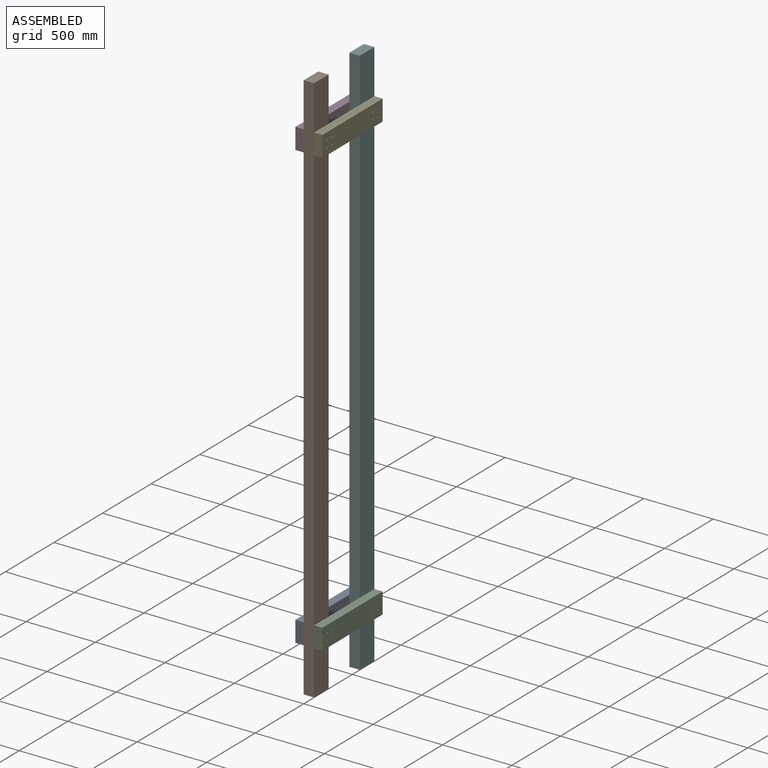
[diagram: assembled view]
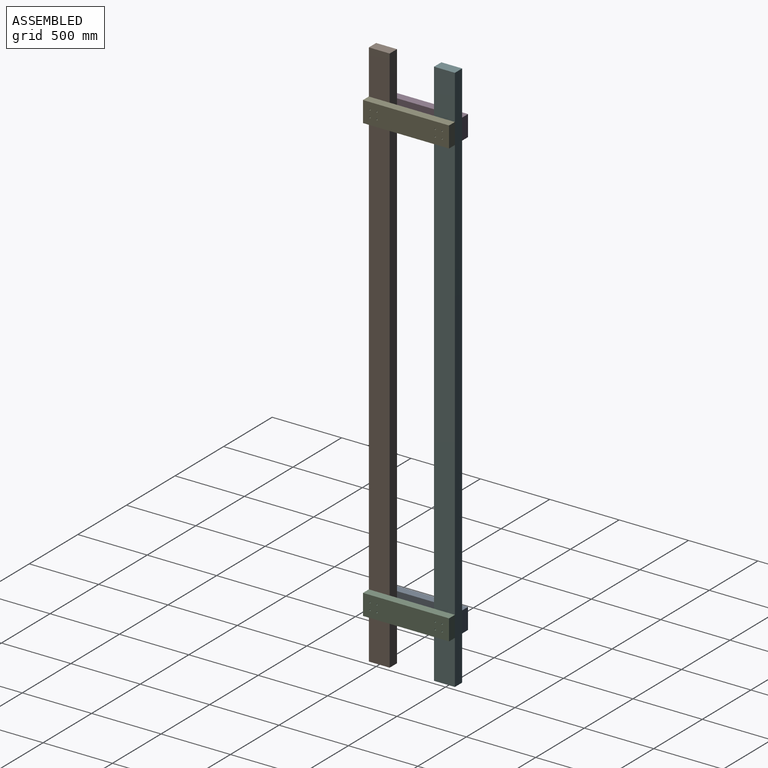
[diagram: assembled view, second angle]
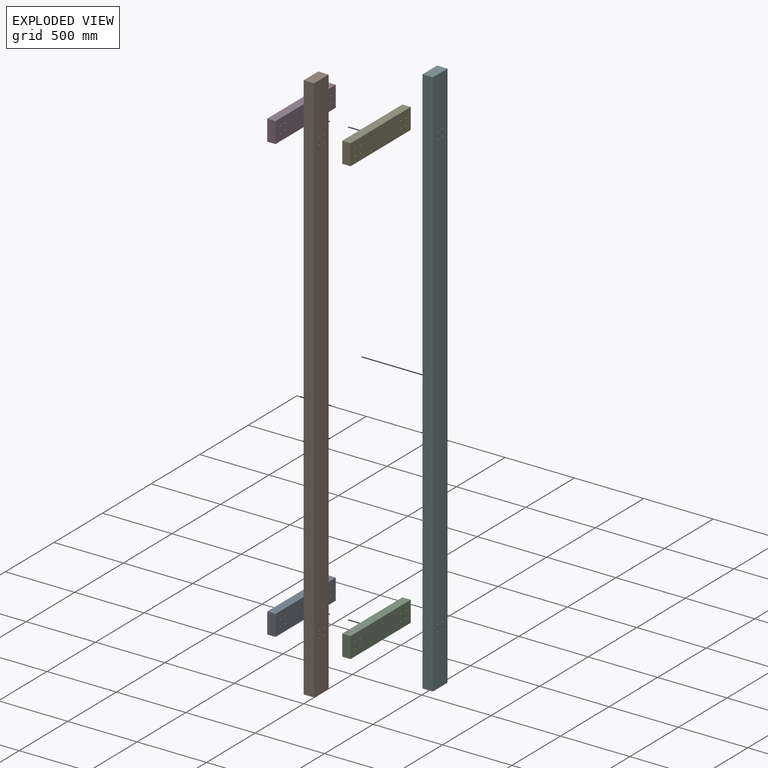
[diagram: exploded view]
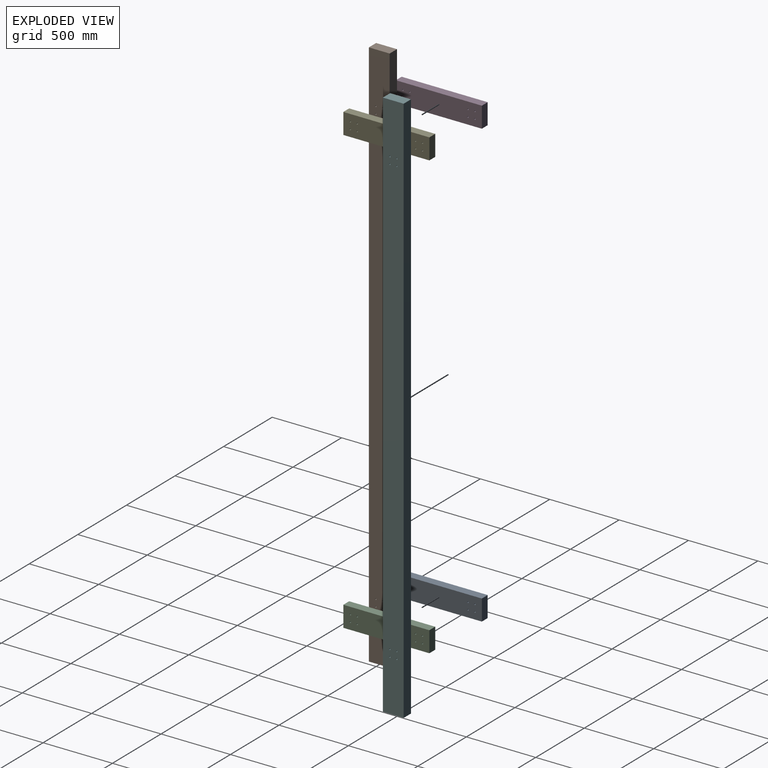
[diagram: exploded view, second angle]
ASSEMBLY  parts=6 mates=5
PART A: 14 faces, bbox 620x60x150 mm
  f0: plane 150x60mm, normal (-1,0,0), area 9000mm2, adj f1,f10,f12,f13
  f1: plane 620x60mm, normal (0,0,-1), area 37200mm2, adj f0,f2,f12,f13
  f2: plane 150x60mm, normal (1,0,0), area 9000mm2, adj f1,f10,f12,f13
  f3: cylinder r=5mm len=60mm, axis (0,1,0), area 1885mm2, adj f12,f13
  f4: cylinder r=5mm len=60mm, axis (0,1,0), area 1885mm2, adj f12,f13
  f5: cylinder r=5mm len=60mm, axis (0,1,0), area 1885mm2, adj f12,f13
  f6: cylinder r=5mm len=60mm, axis (0,1,0), area 1885mm2, adj f12,f13
  f7: cylinder r=5mm len=60mm, axis (0,1,0), area 1885mm2, adj f12,f13
  f8: cylinder r=5mm len=60mm, axis (0,1,0), area 1885mm2, adj f12,f13
  f9: cylinder r=5mm len=60mm, axis (0,1,0), area 1885mm2, adj f12,f13
  f10: plane 620x60mm, normal (0,0,1), area 37200mm2, adj f0,f2,f12,f13
  f11: cylinder r=5mm len=60mm, axis (0,1,0), area 1885mm2, adj f12,f13
  f12: plane 620x150mm, normal (0,-1,0), area 92371.7mm2, adj f0,f1,f2,f3,f4,f5,f6,f7
  f13: plane 620x150mm, normal (0,1,0), area 92371.7mm2, adj f0,f1,f2,f3,f4,f5,f6,f7
PART B: 14 faces, bbox 75x150x4000 mm
  f0: plane 4000x150mm, normal (-1,0,0), area 599371.7mm2, adj f1,f3,f4,f5,f6,f7,f8,f9
  f1: plane 4000x75mm, normal (0,-1,0), area 300000mm2, adj f0,f2,f4,f5
  f2: plane 4000x150mm, normal (1,0,0), area 599371.7mm2, adj f1,f3,f4,f5,f6,f7,f8,f9
  f3: plane 4000x75mm, normal (0,1,0), area 300000mm2, adj f0,f2,f4,f5
  f4: plane 150x75mm, normal (0,0,1), area 11250mm2, adj f0,f1,f2,f3
  f5: plane 150x75mm, normal (0,0,-1), area 11250mm2, adj f0,f1,f2,f3
  f6: cylinder r=5mm len=75mm, axis (1,0,0), area 2356.2mm2, adj f0,f2
  f7: cylinder r=5mm len=75mm, axis (1,0,0), area 2356.2mm2, adj f0,f2
  f8: cylinder r=5mm len=75mm, axis (1,0,0), area 2356.2mm2, adj f0,f2
  f9: cylinder r=5mm len=75mm, axis (1,0,0), area 2356.2mm2, adj f0,f2
  f10: cylinder r=5mm len=75mm, axis (1,0,0), area 2356.2mm2, adj f0,f2
  f11: cylinder r=5mm len=75mm, axis (1,0,0), area 2356.2mm2, adj f0,f2
  f12: cylinder r=5mm len=75mm, axis (1,0,0), area 2356.2mm2, adj f0,f2
  f13: cylinder r=5mm len=75mm, axis (1,0,0), area 2356.2mm2, adj f0,f2
PART C: same geometry as A
PART D: same geometry as A
PART E: same geometry as A
PART F: same geometry as B
PLACE A rot(axis=(0,0,1),90deg) t=(-60,0,320)mm
PLACE B at identity fixed
PLACE C rot(axis=(0,0,-1),90deg) t=(135,620,320)mm
PLACE D rot(axis=(0,0,1),90deg) t=(-60,0,3530)mm
PLACE E rot(axis=(0,0,-1),90deg) t=(135,620,3530)mm
PLACE F t=(0,470,0)mm
MATE fastened A.f9 <-> B.f11  axis (1,0,0) through (0,50,420)mm
MATE fastened F.f12 <-> C.f9  axis (1,0,0) through (75,570,420)mm
MATE fastened E.f9 <-> F.f8  axis (-1,0,0) through (75,570,3630)mm
MATE fastened D.f9 <-> B.f7  axis (1,0,0) through (0,50,3630)mm
MATE fastened C.f4 <-> B.f11  axis (-1,0,0) through (75,50,420)mm
